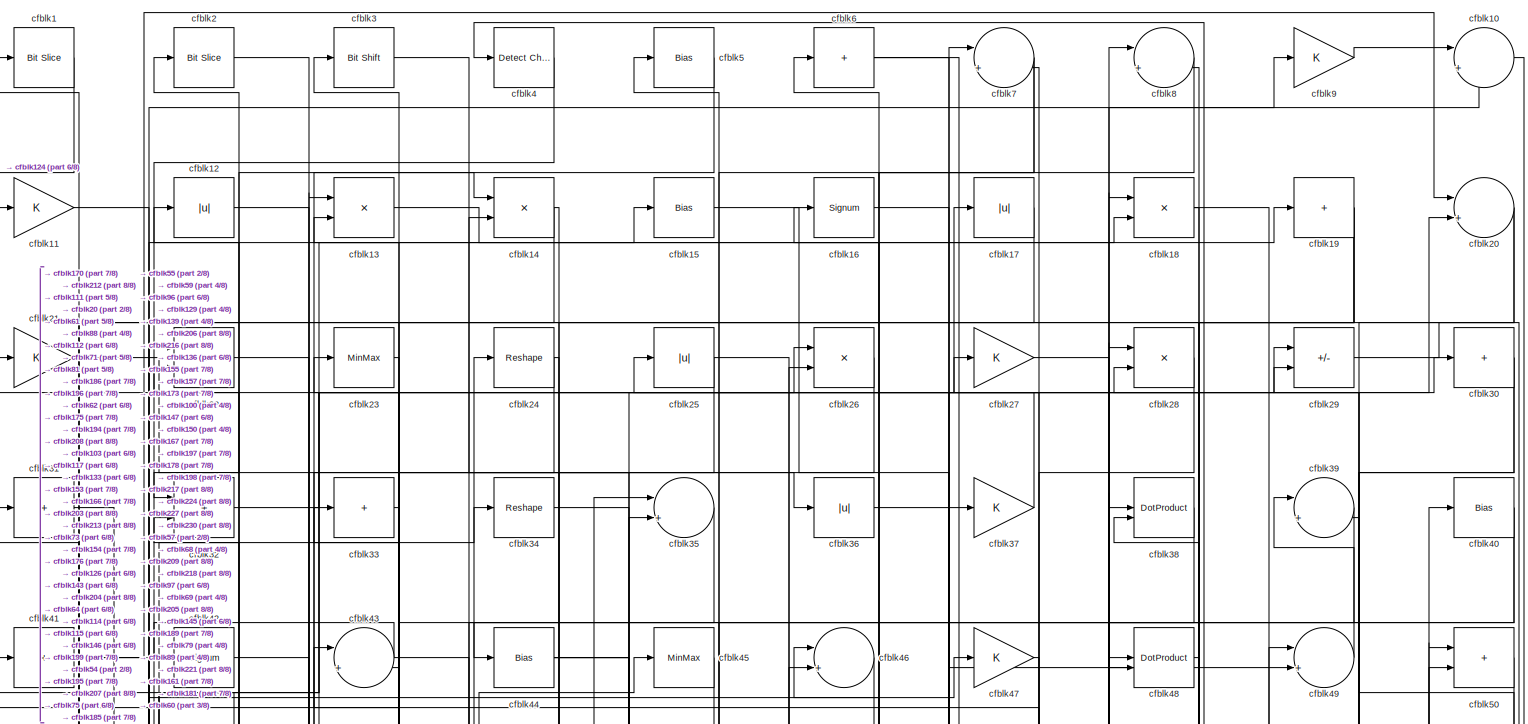
[diagram: root canvas - part 1/8, full width, top band]
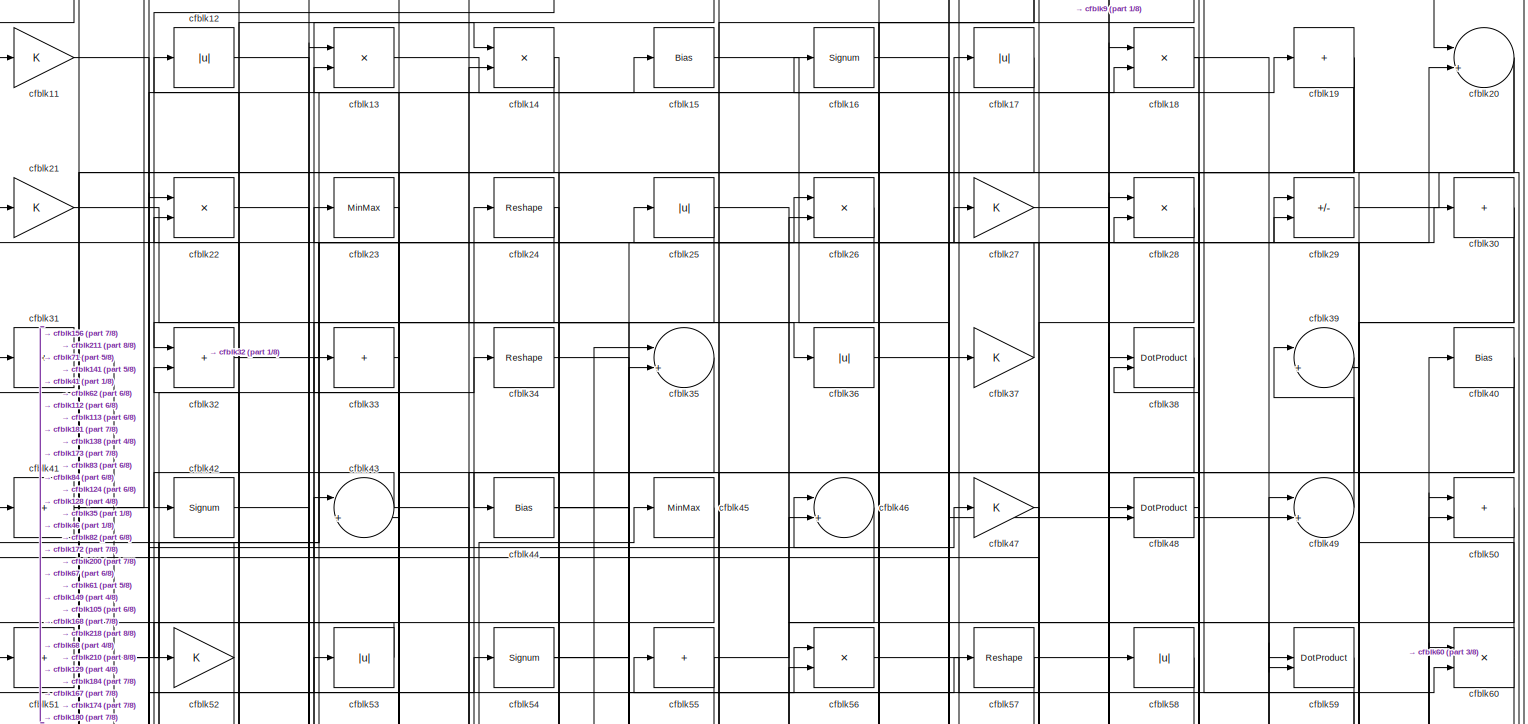
[diagram: root canvas - part 2/8, full width, top band]
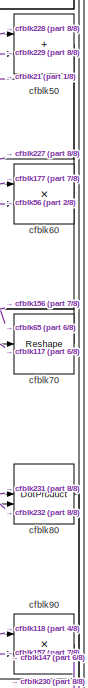
[diagram: root canvas - part 3/8, top right region]
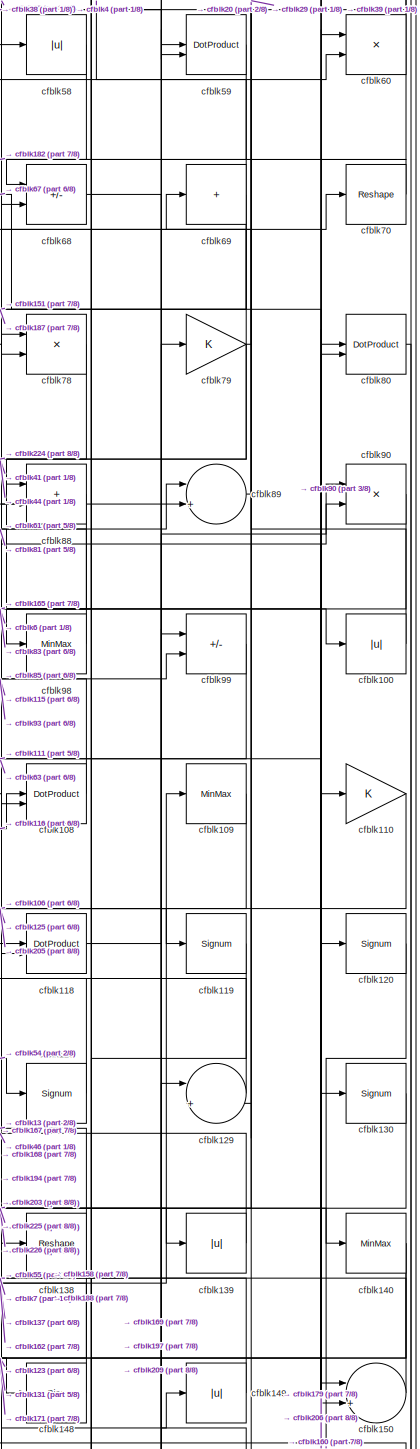
[diagram: root canvas - part 4/8, middle right region]
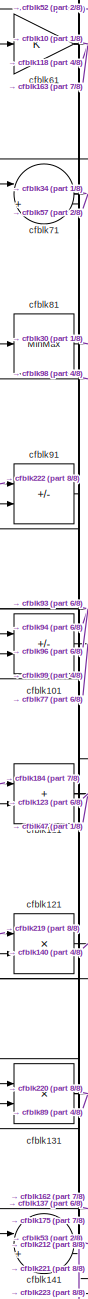
[diagram: root canvas - part 5/8, middle left region]
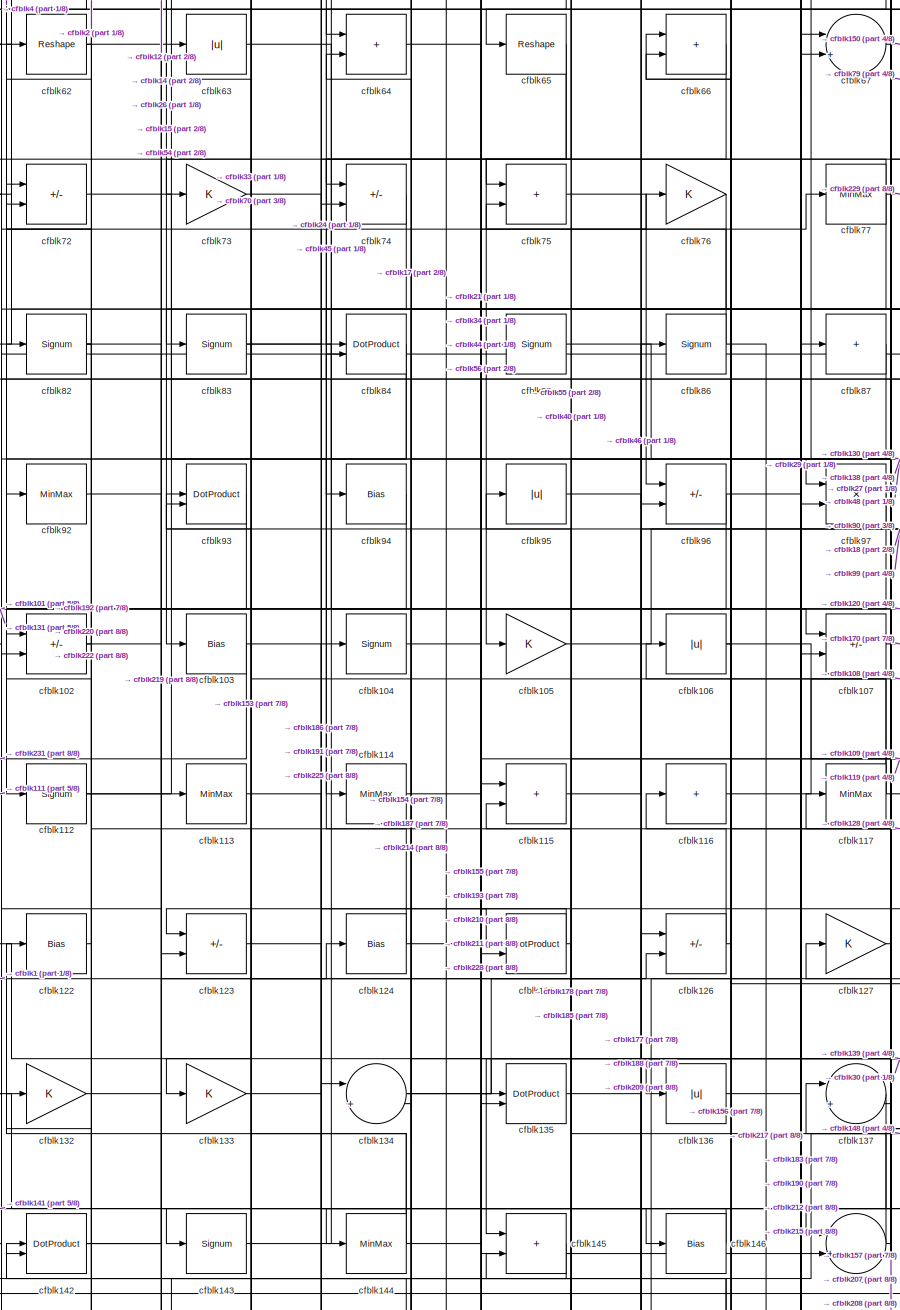
[diagram: root canvas - part 6/8, central region]
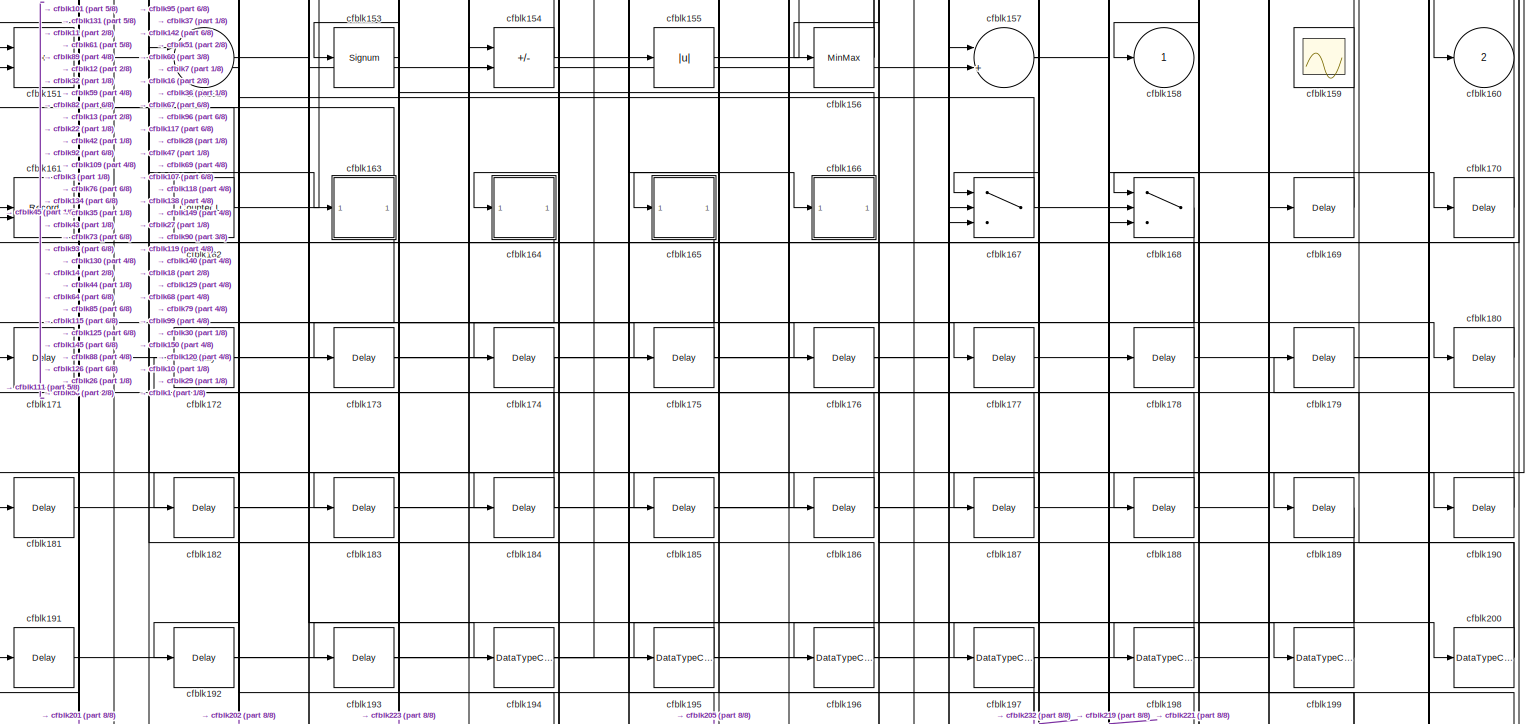
[diagram: root canvas - part 7/8, full width, bottom band]
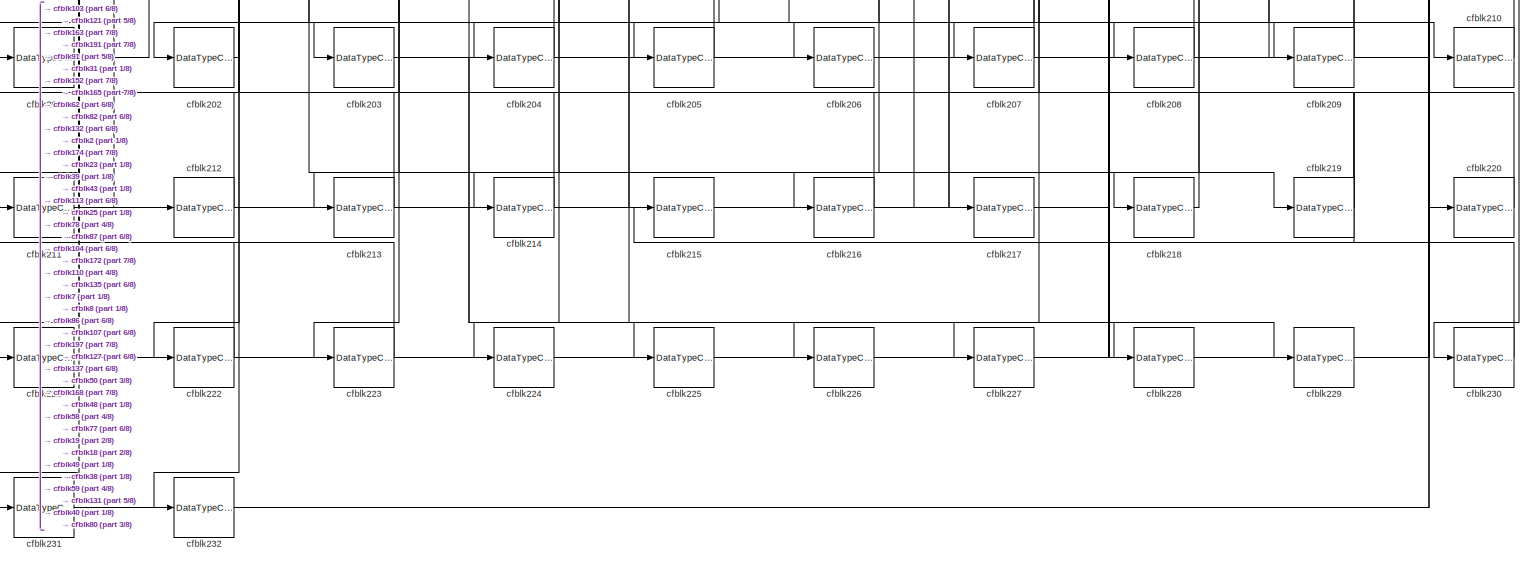
[diagram: root canvas - part 8/8, full width, bottom band]
MODEL slx_c7cff70d7a0f
KIND model
CONFIG AbsTol = auto
CONFIG EnableMultiTasking = off
CONFIG FixedStep = auto
CONFIG MaxStep = auto
CONFIG MinStep = auto
CONFIG RelTol = 1e-3
CONFIG SampleTimeConstraint = Unconstrained
CONFIG SolverName = VariableStepAuto
CONFIG StartTime = 0.0
CONFIG StopTime = 10.0
BLOCK [Reference] cfblk1  REF=hdlsllib/Logic and Bit
Operations/Bit Slice
  SourceBlock = hdlsllib/Logic and Bit\nOperations/Bit Slice
  SourceType = Bit Slice
BLOCK [Sum] cfblk10
  Inputs = |++
BLOCK [Abs] cfblk100
  SaturateOnIntegerOverflow = off
BLOCK [Sum] cfblk101
  IconShape = rectangular
  Inputs = +-
BLOCK [Sum] cfblk102
  IconShape = rectangular
  Inputs = +-
BLOCK [Bias] cfblk103
  Bias = 0.0
  SaturateOnIntegerOverflow = off
BLOCK [Signum] cfblk104
BLOCK [Gain] cfblk105
BLOCK [Abs] cfblk106
  SaturateOnIntegerOverflow = off
BLOCK [Sum] cfblk107
  IconShape = rectangular
  Inputs = +-
BLOCK [DotProduct] cfblk108
  OutDataTypeStr = Inherit: Inherit via internal rule
BLOCK [MinMax] cfblk109
BLOCK [Gain] cfblk11
BLOCK [Gain] cfblk110
BLOCK [Sum] cfblk111
  IconShape = rectangular
BLOCK [Signum] cfblk112
BLOCK [MinMax] cfblk113
BLOCK [MinMax] cfblk114
BLOCK [Sum] cfblk115
  IconShape = rectangular
BLOCK [Sum] cfblk116
  IconShape = rectangular
  Inputs = +
BLOCK [MinMax] cfblk117
BLOCK [DotProduct] cfblk118
  OutDataTypeStr = Inherit: Inherit via internal rule
BLOCK [Signum] cfblk119
BLOCK [Abs] cfblk12
  SaturateOnIntegerOverflow = off
BLOCK [Signum] cfblk120
BLOCK [Product] cfblk121
  Inputs = */
  RndMeth = Zero
  SaturateOnIntegerOverflow = on
BLOCK [Bias] cfblk122
  Bias = 0.0
  SaturateOnIntegerOverflow = off
BLOCK [Sum] cfblk123
  IconShape = rectangular
  Inputs = +-
BLOCK [Bias] cfblk124
  Bias = 0.0
  SaturateOnIntegerOverflow = off
BLOCK [DotProduct] cfblk125
  OutDataTypeStr = Inherit: Inherit via internal rule
BLOCK [Sum] cfblk126
  IconShape = rectangular
  Inputs = +-
BLOCK [Gain] cfblk127
BLOCK [Signum] cfblk128
BLOCK [Sum] cfblk129
  Inputs = |++
BLOCK [Product] cfblk13
  Inputs = */
  RndMeth = Zero
  SaturateOnIntegerOverflow = on
BLOCK [Signum] cfblk130
BLOCK [Product] cfblk131
  Inputs = */
  RndMeth = Zero
  SaturateOnIntegerOverflow = on
BLOCK [Gain] cfblk132
BLOCK [Gain] cfblk133
BLOCK [Sum] cfblk134
  Inputs = |++
BLOCK [DotProduct] cfblk135
  OutDataTypeStr = Inherit: Inherit via internal rule
BLOCK [Abs] cfblk136
  SaturateOnIntegerOverflow = off
BLOCK [Sum] cfblk137
  Inputs = |++
BLOCK [Reshape] cfblk138
BLOCK [Abs] cfblk139
  SaturateOnIntegerOverflow = off
BLOCK [Product] cfblk14
  Inputs = */
  RndMeth = Zero
  SaturateOnIntegerOverflow = on
BLOCK [MinMax] cfblk140
BLOCK [Sum] cfblk141
  Inputs = |++
BLOCK [DotProduct] cfblk142
  OutDataTypeStr = Inherit: Inherit via internal rule
BLOCK [Signum] cfblk143
BLOCK [MinMax] cfblk144
BLOCK [Sum] cfblk145
  IconShape = rectangular
BLOCK [Bias] cfblk146
  Bias = 0.0
  SaturateOnIntegerOverflow = off
BLOCK [Sum] cfblk147
  Inputs = |++
BLOCK [Bias] cfblk148
  Bias = 0.0
  SaturateOnIntegerOverflow = off
BLOCK [Abs] cfblk149
  SaturateOnIntegerOverflow = off
BLOCK [Bias] cfblk15
  Bias = 0.0
  SaturateOnIntegerOverflow = off
BLOCK [Sum] cfblk150
  Inputs = |++
BLOCK [Sum] cfblk151
  IconShape = rectangular
BLOCK [Sum] cfblk152
  Inputs = |++
BLOCK [Signum] cfblk153
BLOCK [Sum] cfblk154
  IconShape = rectangular
  Inputs = +-
BLOCK [Abs] cfblk155
  SaturateOnIntegerOverflow = off
BLOCK [MinMax] cfblk156
BLOCK [Sum] cfblk157
  Inputs = |++
BLOCK [Outport] cfblk158
  VectorParamsAs1DForOutWhenUnconnected = off
BLOCK [Scope] cfblk159
  Floating = on
  NumInputPorts = 1
  ScopeSpecificationString = Simulink.scopes.TimeScopeBlockCfg('CurrentConfiguration', extmgr.ConfigurationSet(extmgr.Configuration('Core','General UI',true,'FigureColor',[0.156862745098039 0.156862745098039 0.156862745098039]),extmgr.Configuration('Core','Source UI',true),extmgr.Configuration('Sources','WiredSimulink',true,'DataLoggingVariableName','ScopeData1','DataLoggingSaveFormat','StructureWithTime','DataLoggingLimitDat...<+2713ch>
BLOCK [Signum] cfblk16
BLOCK [Outport] cfblk160
  Port = 2
  VectorParamsAs1DForOutWhenUnconnected = off
BLOCK [Record] cfblk161
  CompatibilityTag = XY
  FileSettingsInternal = {"entries":[{"content":{"excelSettings":{"content":{},"type":"Streamout.ExcelSettings"}},"type":"Streamout.FileSettingStorage","uuid":""}],"packageUris":["http:\/\/schema.mathworks.com\/mf0\/streamout_blocks\/R2020a"],"version":"1.0"}
  Layout = [1 1]
  SignalsInternal = {"entries":[{"content":{"signals":[{"content":{"blockPath":[],"dimensions":[1],"domain":"","lineColor":"#a2142f","plots":[1],"port":1,"signalID":4583,"signalName":"XY Graph:1"},"type":"RecordBlkView.Signal","uuid":""},{"content":{"blockPath":[],"dimensions":[1],"domain":"","lineColor":"#139fff","plots":[1],"port":2,"signalID":4586,"signalName":"XY Graph:2"},"type":"RecordBlkView.Signal","uuid":""}...<+146ch>
  VisualizationBindings = {"xyplotplugin":{"info":[{"series":[{"bindingParametersList":[{"parameter":"X-Axis","signalID":4583,"signalName":"XY Graph:1"},{"parameter":"Y-Axis","signalID":4586,"signalName":"XY Graph:2"}],"seriesID":3275}],"subplotID":1}]}}
  st = -1
BLOCK [Reference] cfblk162  REF=hdlsllib/Sources/Counter
Limited
  SourceBlock = hdlsllib/Sources/Counter\nLimited
  SourceType = Counter Limited
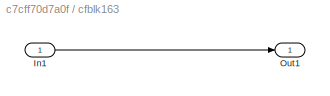
BLOCK [SubSystem] cfblk163
  LibrarySourceBlock = hdlsllib/Ports &\nSubsystems/Subsystem
BLOCK [Inport] cfblk163/In1
BLOCK [Outport] cfblk163/Out1
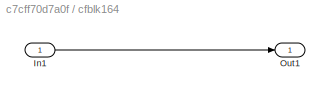
BLOCK [SubSystem] cfblk164
  LibrarySourceBlock = hdlsllib/Ports &\nSubsystems/Subsystem
BLOCK [Inport] cfblk164/In1
BLOCK [Outport] cfblk164/Out1
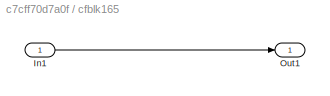
BLOCK [SubSystem] cfblk165
  LibrarySourceBlock = hdlsllib/Ports &\nSubsystems/Subsystem
BLOCK [Inport] cfblk165/In1
BLOCK [Outport] cfblk165/Out1
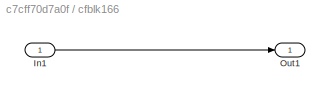
BLOCK [SubSystem] cfblk166
  LibrarySourceBlock = hdlsllib/Ports &\nSubsystems/Subsystem
BLOCK [Inport] cfblk166/In1
BLOCK [Outport] cfblk166/Out1
BLOCK [Switch] cfblk167
  InputSameDT = off
  SaturateOnIntegerOverflow = off
BLOCK [Switch] cfblk168
  InputSameDT = off
  SaturateOnIntegerOverflow = off
BLOCK [Delay] cfblk169
  InputPortMap = u0
  SampleTime = 1
BLOCK [Abs] cfblk17
  SaturateOnIntegerOverflow = off
BLOCK [Delay] cfblk170
  InputPortMap = u0
  SampleTime = 1
BLOCK [Delay] cfblk171
  InputPortMap = u0
  SampleTime = 1
BLOCK [Delay] cfblk172
  InputPortMap = u0
  SampleTime = 1
BLOCK [Delay] cfblk173
  InputPortMap = u0
  SampleTime = 1
BLOCK [Delay] cfblk174
  InputPortMap = u0
  SampleTime = 1
BLOCK [Delay] cfblk175
  InputPortMap = u0
  SampleTime = 1
BLOCK [Delay] cfblk176
  InputPortMap = u0
  SampleTime = 1
BLOCK [Delay] cfblk177
  InputPortMap = u0
  SampleTime = 1
BLOCK [Delay] cfblk178
  InputPortMap = u0
  SampleTime = 1
BLOCK [Delay] cfblk179
  InputPortMap = u0
  SampleTime = 1
BLOCK [Product] cfblk18
  Inputs = */
  RndMeth = Zero
  SaturateOnIntegerOverflow = on
BLOCK [Delay] cfblk180
  InputPortMap = u0
  SampleTime = 1
BLOCK [Delay] cfblk181
  InputPortMap = u0
  SampleTime = 1
BLOCK [Delay] cfblk182
  InputPortMap = u0
  SampleTime = 1
BLOCK [Delay] cfblk183
  InputPortMap = u0
  SampleTime = 1
BLOCK [Delay] cfblk184
  InputPortMap = u0
  SampleTime = 1
BLOCK [Delay] cfblk185
  InputPortMap = u0
  SampleTime = 1
BLOCK [Delay] cfblk186
  InputPortMap = u0
  SampleTime = 1
BLOCK [Delay] cfblk187
  InputPortMap = u0
  SampleTime = 1
BLOCK [Delay] cfblk188
  InputPortMap = u0
  SampleTime = 1
BLOCK [Delay] cfblk189
  InputPortMap = u0
  SampleTime = 1
BLOCK [Sum] cfblk19
  IconShape = rectangular
  Inputs = +
BLOCK [Delay] cfblk190
  InputPortMap = u0
  SampleTime = 1
BLOCK [Delay] cfblk191
  InputPortMap = u0
  SampleTime = 1
BLOCK [Delay] cfblk192
  InputPortMap = u0
  SampleTime = 1
BLOCK [Delay] cfblk193
  InputPortMap = u0
  SampleTime = 1
BLOCK [DataTypeConversion] cfblk194
  RndMeth = Floor
  SaturateOnIntegerOverflow = off
BLOCK [DataTypeConversion] cfblk195
  OutDataTypeStr = uint8
  RndMeth = Floor
  SaturateOnIntegerOverflow = off
BLOCK [DataTypeConversion] cfblk196
  OutDataTypeStr = uint8
  RndMeth = Floor
  SaturateOnIntegerOverflow = off
BLOCK [DataTypeConversion] cfblk197
  RndMeth = Floor
  SaturateOnIntegerOverflow = off
BLOCK [DataTypeConversion] cfblk198
  OutDataTypeStr = uint8
  RndMeth = Floor
  SaturateOnIntegerOverflow = off
BLOCK [DataTypeConversion] cfblk199
  OutDataTypeStr = uint8
  RndMeth = Floor
  SaturateOnIntegerOverflow = off
BLOCK [Reference] cfblk2  REF=hdlsllib/Logic and Bit
Operations/Bit Slice
  SourceBlock = hdlsllib/Logic and Bit\nOperations/Bit Slice
  SourceType = Bit Slice
BLOCK [Sum] cfblk20
  Inputs = |++
BLOCK [DataTypeConversion] cfblk200
  RndMeth = Floor
  SaturateOnIntegerOverflow = off
BLOCK [DataTypeConversion] cfblk201
  OutDataTypeStr = uint8
  RndMeth = Floor
  SaturateOnIntegerOverflow = off
BLOCK [DataTypeConversion] cfblk202
  OutDataTypeStr = uint8
  RndMeth = Floor
  SaturateOnIntegerOverflow = off
BLOCK [DataTypeConversion] cfblk203
  RndMeth = Floor
  SaturateOnIntegerOverflow = off
BLOCK [DataTypeConversion] cfblk204
  OutDataTypeStr = uint8
  RndMeth = Floor
  SaturateOnIntegerOverflow = off
BLOCK [DataTypeConversion] cfblk205
  RndMeth = Floor
  SaturateOnIntegerOverflow = off
BLOCK [DataTypeConversion] cfblk206
  OutDataTypeStr = uint8
  RndMeth = Floor
  SaturateOnIntegerOverflow = off
BLOCK [DataTypeConversion] cfblk207
  OutDataTypeStr = uint8
  RndMeth = Floor
  SaturateOnIntegerOverflow = off
BLOCK [DataTypeConversion] cfblk208
  OutDataTypeStr = uint8
  RndMeth = Floor
  SaturateOnIntegerOverflow = off
BLOCK [DataTypeConversion] cfblk209
  RndMeth = Floor
  SaturateOnIntegerOverflow = off
BLOCK [Gain] cfblk21
BLOCK [DataTypeConversion] cfblk210
  OutDataTypeStr = uint8
  RndMeth = Floor
  SaturateOnIntegerOverflow = off
BLOCK [DataTypeConversion] cfblk211
  OutDataTypeStr = uint8
  RndMeth = Floor
  SaturateOnIntegerOverflow = off
BLOCK [DataTypeConversion] cfblk212
  RndMeth = Floor
  SaturateOnIntegerOverflow = off
BLOCK [DataTypeConversion] cfblk213
  OutDataTypeStr = uint8
  RndMeth = Floor
  SaturateOnIntegerOverflow = off
BLOCK [DataTypeConversion] cfblk214
  OutDataTypeStr = uint8
  RndMeth = Floor
  SaturateOnIntegerOverflow = off
BLOCK [DataTypeConversion] cfblk215
  OutDataTypeStr = uint8
  RndMeth = Floor
  SaturateOnIntegerOverflow = off
BLOCK [DataTypeConversion] cfblk216
  OutDataTypeStr = uint8
  RndMeth = Floor
  SaturateOnIntegerOverflow = off
BLOCK [DataTypeConversion] cfblk217
  OutDataTypeStr = uint8
  RndMeth = Floor
  SaturateOnIntegerOverflow = off
BLOCK [DataTypeConversion] cfblk218
  OutDataTypeStr = uint8
  RndMeth = Floor
  SaturateOnIntegerOverflow = off
BLOCK [DataTypeConversion] cfblk219
  RndMeth = Floor
  SaturateOnIntegerOverflow = off
BLOCK [Product] cfblk22
  Inputs = */
  RndMeth = Zero
  SaturateOnIntegerOverflow = on
BLOCK [DataTypeConversion] cfblk220
  OutDataTypeStr = uint8
  RndMeth = Floor
  SaturateOnIntegerOverflow = off
BLOCK [DataTypeConversion] cfblk221
  RndMeth = Floor
  SaturateOnIntegerOverflow = off
BLOCK [DataTypeConversion] cfblk222
  OutDataTypeStr = uint8
  RndMeth = Floor
  SaturateOnIntegerOverflow = off
BLOCK [DataTypeConversion] cfblk223
  OutDataTypeStr = uint8
  RndMeth = Floor
  SaturateOnIntegerOverflow = off
BLOCK [DataTypeConversion] cfblk224
  OutDataTypeStr = uint8
  RndMeth = Floor
  SaturateOnIntegerOverflow = off
BLOCK [DataTypeConversion] cfblk225
  OutDataTypeStr = uint8
  RndMeth = Floor
  SaturateOnIntegerOverflow = off
BLOCK [DataTypeConversion] cfblk226
  OutDataTypeStr = uint8
  RndMeth = Floor
  SaturateOnIntegerOverflow = off
BLOCK [DataTypeConversion] cfblk227
  OutDataTypeStr = uint8
  RndMeth = Floor
  SaturateOnIntegerOverflow = off
BLOCK [DataTypeConversion] cfblk228
  OutDataTypeStr = uint8
  RndMeth = Floor
  SaturateOnIntegerOverflow = off
BLOCK [DataTypeConversion] cfblk229
  OutDataTypeStr = uint8
  RndMeth = Floor
  SaturateOnIntegerOverflow = off
BLOCK [MinMax] cfblk23
BLOCK [DataTypeConversion] cfblk230
  OutDataTypeStr = uint8
  RndMeth = Floor
  SaturateOnIntegerOverflow = off
BLOCK [DataTypeConversion] cfblk231
  OutDataTypeStr = uint8
  RndMeth = Floor
  SaturateOnIntegerOverflow = off
BLOCK [DataTypeConversion] cfblk232
  OutDataTypeStr = uint8
  RndMeth = Floor
  SaturateOnIntegerOverflow = off
BLOCK [Reshape] cfblk24
BLOCK [Abs] cfblk25
  SaturateOnIntegerOverflow = off
BLOCK [Product] cfblk26
  Inputs = */
  RndMeth = Zero
  SaturateOnIntegerOverflow = on
BLOCK [Gain] cfblk27
BLOCK [Product] cfblk28
  Inputs = */
  RndMeth = Zero
  SaturateOnIntegerOverflow = on
BLOCK [Sum] cfblk29
  IconShape = rectangular
  Inputs = +-
BLOCK [Reference] cfblk3  REF=hdlsllib/Logic and Bit
Operations/Bit Shift
  SourceBlock = hdlsllib/Logic and Bit\nOperations/Bit Shift
  SourceType = Bit Shift
BLOCK [Sum] cfblk30
  IconShape = rectangular
  Inputs = +
BLOCK [Sum] cfblk31
  IconShape = rectangular
  Inputs = +
BLOCK [Sum] cfblk32
  IconShape = rectangular
BLOCK [Sum] cfblk33
  IconShape = rectangular
  Inputs = +
BLOCK [Reshape] cfblk34
BLOCK [Sum] cfblk35
  Inputs = |++
BLOCK [Abs] cfblk36
  SaturateOnIntegerOverflow = off
BLOCK [Gain] cfblk37
BLOCK [DotProduct] cfblk38
  OutDataTypeStr = Inherit: Inherit via internal rule
BLOCK [Sum] cfblk39
  Inputs = |++
BLOCK [Reference] cfblk4  REF=simulink/Logic and Bit
Operations/Detect
Change
  LibrarySourceBlock = hdlsllib/Logic and Bit\nOperations/Detect\nChange
  SourceBlock = simulink/Logic and Bit\nOperations/Detect\nChange
  SourceType = Detect Change
BLOCK [Bias] cfblk40
  Bias = 0.0
  SaturateOnIntegerOverflow = off
BLOCK [Sum] cfblk41
  IconShape = rectangular
  Inputs = +
BLOCK [Signum] cfblk42
BLOCK [Sum] cfblk43
  Inputs = |++
BLOCK [Bias] cfblk44
  Bias = 0.0
  SaturateOnIntegerOverflow = off
BLOCK [MinMax] cfblk45
BLOCK [Sum] cfblk46
  Inputs = |++
BLOCK [Gain] cfblk47
BLOCK [DotProduct] cfblk48
  OutDataTypeStr = Inherit: Inherit via internal rule
BLOCK [Sum] cfblk49
  Inputs = |++
BLOCK [Bias] cfblk5
  Bias = 0.0
  SaturateOnIntegerOverflow = off
BLOCK [Sum] cfblk50
  IconShape = rectangular
BLOCK [Sum] cfblk51
  IconShape = rectangular
  Inputs = +
BLOCK [Gain] cfblk52
BLOCK [Abs] cfblk53
  SaturateOnIntegerOverflow = off
BLOCK [Signum] cfblk54
BLOCK [Sum] cfblk55
  IconShape = rectangular
  Inputs = +
BLOCK [Product] cfblk56
  Inputs = */
  RndMeth = Zero
  SaturateOnIntegerOverflow = on
BLOCK [Reshape] cfblk57
BLOCK [Abs] cfblk58
  SaturateOnIntegerOverflow = off
BLOCK [DotProduct] cfblk59
  OutDataTypeStr = Inherit: Inherit via internal rule
BLOCK [Sum] cfblk6
  IconShape = rectangular
  Inputs = +
BLOCK [Product] cfblk60
  Inputs = */
  RndMeth = Zero
  SaturateOnIntegerOverflow = on
BLOCK [Gain] cfblk61
BLOCK [Reshape] cfblk62
BLOCK [Abs] cfblk63
  SaturateOnIntegerOverflow = off
BLOCK [Sum] cfblk64
  IconShape = rectangular
BLOCK [Reshape] cfblk65
BLOCK [Sum] cfblk66
  IconShape = rectangular
BLOCK [Sum] cfblk67
  Inputs = |++
BLOCK [Sum] cfblk68
  IconShape = rectangular
  Inputs = +-
BLOCK [Sum] cfblk69
  IconShape = rectangular
  Inputs = +
BLOCK [Sum] cfblk7
  Inputs = |++
BLOCK [Reshape] cfblk70
BLOCK [Sum] cfblk71
  Inputs = |++
BLOCK [Sum] cfblk72
  IconShape = rectangular
  Inputs = +-
BLOCK [Gain] cfblk73
BLOCK [Sum] cfblk74
  IconShape = rectangular
  Inputs = +-
BLOCK [Sum] cfblk75
  IconShape = rectangular
BLOCK [Gain] cfblk76
BLOCK [MinMax] cfblk77
BLOCK [Product] cfblk78
  Inputs = */
  RndMeth = Zero
  SaturateOnIntegerOverflow = on
BLOCK [Gain] cfblk79
BLOCK [Sum] cfblk8
  Inputs = |++
BLOCK [DotProduct] cfblk80
  OutDataTypeStr = Inherit: Inherit via internal rule
BLOCK [MinMax] cfblk81
BLOCK [Signum] cfblk82
BLOCK [Signum] cfblk83
BLOCK [DotProduct] cfblk84
  OutDataTypeStr = Inherit: Inherit via internal rule
BLOCK [Signum] cfblk85
BLOCK [Signum] cfblk86
BLOCK [Sum] cfblk87
  IconShape = rectangular
  Inputs = +
BLOCK [Sum] cfblk88
  IconShape = rectangular
BLOCK [Sum] cfblk89
  Inputs = |++
BLOCK [Gain] cfblk9
BLOCK [Product] cfblk90
  Inputs = */
  RndMeth = Zero
  SaturateOnIntegerOverflow = on
BLOCK [Sum] cfblk91
  IconShape = rectangular
  Inputs = +-
BLOCK [MinMax] cfblk92
BLOCK [DotProduct] cfblk93
  OutDataTypeStr = Inherit: Inherit via internal rule
BLOCK [Bias] cfblk94
  Bias = 0.0
  SaturateOnIntegerOverflow = off
BLOCK [Abs] cfblk95
  SaturateOnIntegerOverflow = off
BLOCK [Sum] cfblk96
  IconShape = rectangular
  Inputs = +-
BLOCK [Product] cfblk97
  Inputs = */
  RndMeth = Zero
  SaturateOnIntegerOverflow = on
BLOCK [MinMax] cfblk98
BLOCK [Sum] cfblk99
  IconShape = rectangular
  Inputs = +-
LINE cfblk100:1 -> cfblk69:1
LINE cfblk101:1 -> cfblk77:1
NET cfblk102:1 -> cfblk107:1, cfblk72:1
NET cfblk103:1 -> cfblk125:1, cfblk231:1
LINE cfblk104:1 -> cfblk228:1
LINE cfblk105:1 -> cfblk18:1
NET cfblk106:1 -> cfblk119:1, cfblk66:2
LINE cfblk107:1 -> cfblk170:1
LINE cfblk108:1 -> cfblk93:1
LINE cfblk109:1 -> cfblk125:2
LINE cfblk10:1 -> cfblk181:1
LINE cfblk110:1 -> cfblk205:1
NET cfblk111:1 -> cfblk123:2, cfblk47:1
NET cfblk112:1 -> cfblk15:1, cfblk54:1
LINE cfblk113:1 -> cfblk225:1
LINE cfblk114:1 -> cfblk26:1
LINE cfblk115:1 -> cfblk99:2
LINE cfblk116:1 -> cfblk108:1
NET cfblk117:1 -> cfblk33:1, cfblk66:1, cfblk70:1
LINE cfblk118:1 -> cfblk90:1
LINE cfblk119:1 -> cfblk188:1
LINE cfblk11:1 -> cfblk184:1
LINE cfblk120:1 -> cfblk160:1
LINE cfblk121:1 -> cfblk140:1
LINE cfblk122:1 -> cfblk102:1
LINE cfblk123:1 -> cfblk148:1
NET cfblk124:1 -> cfblk56:1, cfblk72:2
NET cfblk125:1 -> cfblk123:1, cfblk185:1
NET cfblk126:1 -> cfblk106:1, cfblk24:1
LINE cfblk127:1 -> cfblk207:1
LINE cfblk128:1 -> cfblk116:1
LINE cfblk129:1 -> cfblk6:1
LINE cfblk12:1 -> cfblk113:1
LINE cfblk130:1 -> cfblk164:1
NET cfblk131:1 -> cfblk220:1, cfblk89:2
LINE cfblk132:1 -> cfblk219:1
LINE cfblk133:1 -> cfblk104:1
NET cfblk134:1 -> cfblk139:1, cfblk86:1
LINE cfblk135:1 -> cfblk209:1
LINE cfblk136:1 -> cfblk29:1
LINE cfblk137:1 -> cfblk141:1
NET cfblk138:1 -> cfblk13:2, cfblk168:3
LINE cfblk139:1 -> cfblk46:1
LINE cfblk13:1 -> cfblk19:1
NET cfblk140:1 -> cfblk158:1, cfblk171:1
LINE cfblk141:1 -> cfblk53:1
NET cfblk142:1 -> cfblk126:2, cfblk84:2
LINE cfblk143:1 -> cfblk45:1
NET cfblk144:1 -> cfblk122:1, cfblk63:1, cfblk76:1
LINE cfblk145:1 -> cfblk142:2
LINE cfblk146:1 -> cfblk143:1
NET cfblk147:1 -> cfblk27:1, cfblk95:1
LINE cfblk148:1 -> cfblk137:1
LINE cfblk149:1 -> cfblk55:1
NET cfblk14:1 -> cfblk173:1, cfblk174:1
LINE cfblk150:1 -> cfblk7:2
LINE cfblk151:1 -> cfblk89:1
LINE cfblk152:1 -> cfblk200:1
LINE cfblk153:1 -> cfblk3:1
NET cfblk154:1 -> cfblk166:1, cfblk93:2
LINE cfblk155:1 -> cfblk37:1
NET cfblk156:1 -> cfblk142:1, cfblk51:1
NET cfblk157:1 -> cfblk117:1, cfblk90:2
LINE cfblk15:1 -> cfblk67:2
NET cfblk162:1 -> cfblk109:1, cfblk131:2
LINE cfblk163/In1:1 -> cfblk163/Out1:1
NET cfblk163:1 -> cfblk151:2, cfblk201:1
LINE cfblk164/In1:1 -> cfblk164/Out1:1
LINE cfblk164:1 -> cfblk193:1
LINE cfblk165/In1:1 -> cfblk165/Out1:1
LINE cfblk165:1 -> cfblk202:1
LINE cfblk166/In1:1 -> cfblk166/Out1:1
LINE cfblk166:1 -> cfblk43:2
NET cfblk167:1 -> cfblk12:1, cfblk149:1
LINE cfblk168:1 -> cfblk183:1
LINE cfblk169:1 -> cfblk99:1
LINE cfblk16:1 -> cfblk180:1
LINE cfblk170:1 -> cfblk1:1
LINE cfblk171:1 -> cfblk167:2
LINE cfblk172:1 -> cfblk56:2
LINE cfblk173:1 -> cfblk7:1
LINE cfblk174:1 -> cfblk223:1
LINE cfblk175:1 -> cfblk101:2
LINE cfblk176:1 -> cfblk196:1
LINE cfblk177:1 -> cfblk60:1
LINE cfblk178:1 -> cfblk145:2
LINE cfblk179:1 -> cfblk150:1
LINE cfblk17:1 -> cfblk84:1
LINE cfblk180:1 -> cfblk154:1
LINE cfblk181:1 -> cfblk13:1
LINE cfblk182:1 -> cfblk129:1
LINE cfblk183:1 -> cfblk67:1
LINE cfblk184:1 -> cfblk111:1
LINE cfblk185:1 -> cfblk26:2
LINE cfblk186:1 -> cfblk32:2
LINE cfblk187:1 -> cfblk64:2
LINE cfblk188:1 -> cfblk126:1
LINE cfblk189:1 -> cfblk198:1
NET cfblk18:1 -> cfblk168:1, cfblk210:1
LINE cfblk190:1 -> cfblk115:2
LINE cfblk191:1 -> cfblk134:1
LINE cfblk192:1 -> cfblk167:3
LINE cfblk193:1 -> cfblk85:1
NET cfblk194:1 -> cfblk118:2, cfblk35:1
LINE cfblk195:1 -> cfblk22:1
LINE cfblk196:1 -> cfblk22:2
NET cfblk197:1 -> cfblk232:1, cfblk79:1
LINE cfblk198:1 -> cfblk28:1
LINE cfblk199:1 -> cfblk28:2
NET cfblk19:1 -> cfblk211:1, cfblk218:1, cfblk71:1
LINE cfblk1:1 -> cfblk124:1
NET cfblk200:1 -> cfblk16:1, cfblk179:1
LINE cfblk201:1 -> cfblk152:1
LINE cfblk202:1 -> cfblk152:2
NET cfblk203:1 -> cfblk226:1, cfblk58:1
LINE cfblk204:1 -> cfblk23:1
NET cfblk205:1 -> cfblk172:1, cfblk49:1
LINE cfblk206:1 -> cfblk110:1
LINE cfblk207:1 -> cfblk25:1
LINE cfblk208:1 -> cfblk127:1
NET cfblk209:1 -> cfblk38:2, cfblk59:1
NET cfblk20:1 -> cfblk129:2, cfblk68:1
LINE cfblk210:1 -> cfblk135:1
LINE cfblk211:1 -> cfblk135:2
NET cfblk212:1 -> cfblk107:2, cfblk121:2
LINE cfblk213:1 -> cfblk31:1
LINE cfblk214:1 -> cfblk62:1
LINE cfblk215:1 -> cfblk87:1
LINE cfblk216:1 -> cfblk43:1
LINE cfblk217:1 -> cfblk8:1
LINE cfblk218:1 -> cfblk8:2
NET cfblk219:1 -> cfblk121:1, cfblk137:2, cfblk191:1, cfblk215:1
LINE cfblk21:1 -> cfblk115:1
LINE cfblk220:1 -> cfblk132:1
NET cfblk221:1 -> cfblk168:2, cfblk40:1
LINE cfblk222:1 -> cfblk91:1
LINE cfblk223:1 -> cfblk91:2
LINE cfblk224:1 -> cfblk38:1
LINE cfblk225:1 -> cfblk78:1
LINE cfblk226:1 -> cfblk78:2
LINE cfblk227:1 -> cfblk48:2
LINE cfblk228:1 -> cfblk50:1
LINE cfblk229:1 -> cfblk50:2
LINE cfblk22:1 -> cfblk194:1
LINE cfblk230:1 -> cfblk48:1
LINE cfblk231:1 -> cfblk80:1
LINE cfblk232:1 -> cfblk80:2
LINE cfblk23:1 -> cfblk203:1
NET cfblk24:1 -> cfblk133:1, cfblk64:1
NET cfblk25:1 -> cfblk204:1, cfblk59:2
LINE cfblk26:1 -> cfblk103:1
LINE cfblk27:1 -> cfblk178:1
LINE cfblk28:1 -> cfblk197:1
LINE cfblk29:1 -> cfblk161:1
LINE cfblk2:1 -> cfblk208:1
NET cfblk30:1 -> cfblk145:1, cfblk189:1
LINE cfblk31:1 -> cfblk212:1
LINE cfblk32:1 -> cfblk20:2
LINE cfblk33:1 -> cfblk73:1
LINE cfblk34:1 -> cfblk147:2
LINE cfblk35:1 -> cfblk154:2
LINE cfblk36:1 -> cfblk157:1
LINE cfblk37:1 -> cfblk5:1
LINE cfblk38:1 -> cfblk68:2
LINE cfblk39:1 -> cfblk213:1
LINE cfblk3:1 -> cfblk36:1
NET cfblk40:1 -> cfblk44:1, cfblk75:1
NET cfblk41:1 -> cfblk20:1, cfblk88:1
LINE cfblk42:1 -> cfblk175:1
NET cfblk43:1 -> cfblk176:1, cfblk42:1
NET cfblk44:1 -> cfblk146:1, cfblk199:1, cfblk88:2
LINE cfblk45:1 -> cfblk161:2
LINE cfblk46:1 -> cfblk96:2
LINE cfblk47:1 -> cfblk167:1
LINE cfblk48:1 -> cfblk97:1
LINE cfblk49:1 -> cfblk39:1
LINE cfblk4:1 -> cfblk112:1
LINE cfblk50:1 -> cfblk227:1
NET cfblk51:1 -> cfblk17:1, cfblk18:2
NET cfblk52:1 -> cfblk11:1, cfblk71:2
LINE cfblk53:1 -> cfblk52:1
NET cfblk54:1 -> cfblk128:1, cfblk35:2
NET cfblk55:1 -> cfblk46:2, cfblk82:1
LINE cfblk56:1 -> cfblk60:2
NET cfblk57:1 -> cfblk61:1, cfblk9:1
LINE cfblk58:1 -> cfblk108:2
LINE cfblk59:1 -> cfblk182:1
LINE cfblk5:1 -> cfblk32:1
NET cfblk60:1 -> cfblk156:1, cfblk21:1
NET cfblk61:1 -> cfblk10:2, cfblk118:1, cfblk163:1
NET cfblk62:1 -> cfblk14:1, cfblk2:1
LINE cfblk63:1 -> cfblk120:1
LINE cfblk64:1 -> cfblk155:1
NET cfblk65:1 -> cfblk105:1, cfblk74:2
LINE cfblk66:1 -> cfblk114:1
LINE cfblk67:1 -> cfblk150:2
LINE cfblk68:1 -> cfblk169:1
NET cfblk69:1 -> cfblk151:1, cfblk187:1, cfblk4:1
NET cfblk6:1 -> cfblk100:1, cfblk49:2
LINE cfblk70:1 -> cfblk65:1
NET cfblk71:1 -> cfblk34:1, cfblk57:1
LINE cfblk72:1 -> cfblk97:2
LINE cfblk73:1 -> cfblk186:1
LINE cfblk74:1 -> cfblk83:1
LINE cfblk75:1 -> cfblk96:1
LINE cfblk76:1 -> cfblk153:1
NET cfblk77:1 -> cfblk144:1, cfblk229:1, cfblk74:1
LINE cfblk78:1 -> cfblk224:1
NET cfblk79:1 -> cfblk134:2, cfblk39:2, cfblk41:1, cfblk98:1
NET cfblk7:1 -> cfblk195:1, cfblk206:1
LINE cfblk80:1 -> cfblk230:1
LINE cfblk81:1 -> cfblk30:1
NET cfblk82:1 -> cfblk192:1, cfblk222:1, cfblk94:1
NET cfblk83:1 -> cfblk138:1, cfblk14:2
NET cfblk84:1 -> cfblk102:2, cfblk92:1
LINE cfblk85:1 -> cfblk130:1
NET cfblk86:1 -> cfblk217:1, cfblk75:2
LINE cfblk87:1 -> cfblk214:1
LINE cfblk88:1 -> cfblk165:1
LINE cfblk89:1 -> cfblk29:2
LINE cfblk8:1 -> cfblk216:1
LINE cfblk90:1 -> cfblk147:1
LINE cfblk91:1 -> cfblk221:1
LINE cfblk92:1 -> cfblk157:2
LINE cfblk93:1 -> cfblk101:1
LINE cfblk94:1 -> cfblk141:2
LINE cfblk95:1 -> cfblk177:1
NET cfblk96:1 -> cfblk131:1, cfblk190:1
LINE cfblk97:1 -> cfblk136:1
LINE cfblk98:1 -> cfblk81:1
LINE cfblk99:1 -> cfblk111:2
LINE cfblk9:1 -> cfblk10:1
note: NET lines group one-source signal fan-out (src -> all destinations, sorted); 1:1 wires keep LINE
